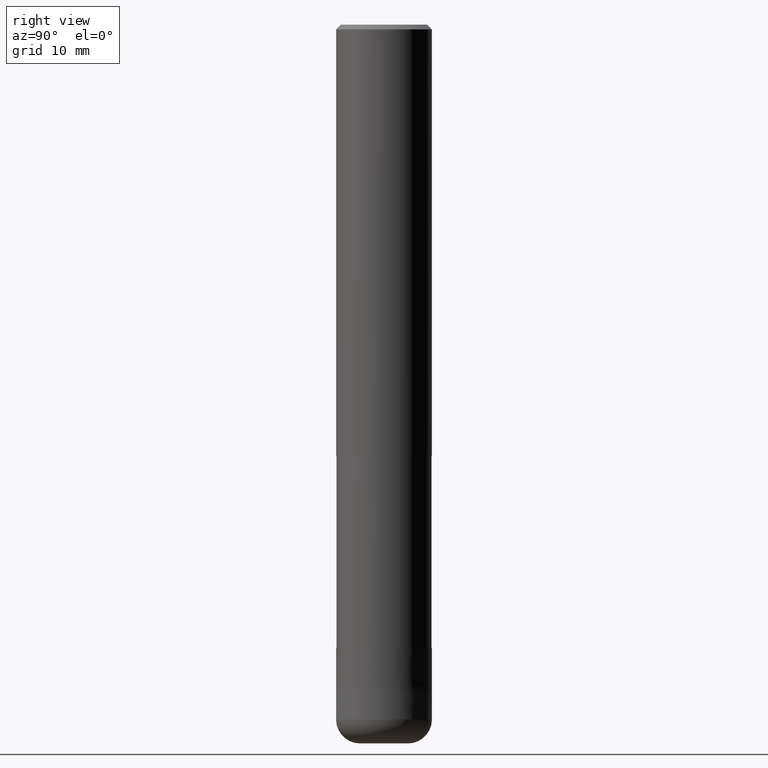
[diagram: clean part render]
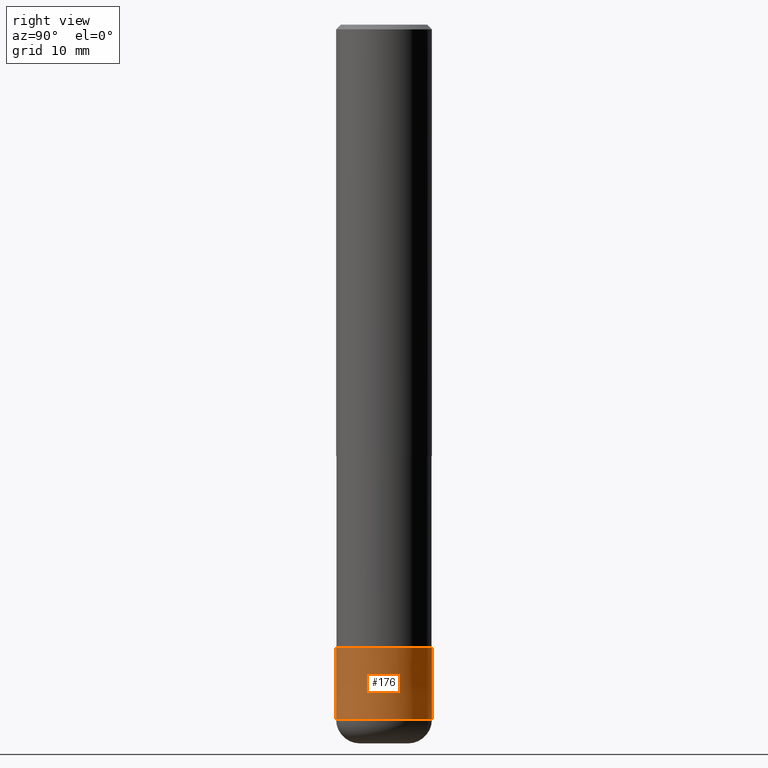
[diagram: same view with one face highlighted and labeled with its STEP entity id]
A machine part, right view. The second image highlights one B-rep face of the part: STEP entity #176.
In plain terms, the highlighted conical surface has half-angle 0.001 deg.
Its self-contained STEP definition (entity closure, byte-faithful):
#94=EDGE_CURVE('',#202,#114,#232,.T.);
#114=VERTEX_POINT('',#256);
#132=EDGE_CURVE('',#202,#206,#275,.T.);
#144=VERTEX_POINT('',#288);
#146=EDGE_CURVE('',#144,#206,#290,.T.);
#174=EDGE_CURVE('',#114,#144,#322,.T.);
#176=ADVANCED_FACE('',(#324),#325,.T.);
#202=VERTEX_POINT('',#355);
#206=VERTEX_POINT('',#359);
#232=LINE('',#378,#379);
#256=CARTESIAN_POINT('',(0.0,4.0,-58.0));
#275=CIRCLE('',#430,3.9999);
#288=CARTESIAN_POINT('',(4.89842541528951E-016,-4.0,-58.0));
#290=LINE('',#450,#451);
#322=CIRCLE('',#487,4.0);
#324=FACE_OUTER_BOUND('',#489,.T.);
#325=CONICAL_SURFACE('',#490,3.99995,1.66666666651586E-005);
#355=CARTESIAN_POINT('',(0.0,3.9999,-52.0));
#359=CARTESIAN_POINT('',(4.89830295465413E-016,-3.9999,-52.0));
#378=CARTESIAN_POINT('',(-4.89836418497182E-016,3.99995,-55.0));
#379=VECTOR('',#548,1.0);
#430=AXIS2_PLACEMENT_3D('',#602,#603,#604);
#450=CARTESIAN_POINT('',(4.89836418497182E-016,-3.99995,-55.0));
#451=VECTOR('',#620,1.0);
#487=AXIS2_PLACEMENT_3D('',#659,#660,#661);
#489=EDGE_LOOP('',(#663,#664,#665,#666));
#490=AXIS2_PLACEMENT_3D('',#667,#668,#669);
#548=DIRECTION('',(-2.04101058942479E-021,1.6666666664387E-005,-0.999999999861111));
#602=CARTESIAN_POINT('',(0.0,0.0,-52.0));
#603=DIRECTION('',(0.0,0.0,-1.0));
#604=DIRECTION('',(0.0,1.0,0.0));
#620=DIRECTION('',(-2.04101058942479E-021,1.6666666664387E-005,0.999999999861111));
#659=CARTESIAN_POINT('',(0.0,0.0,-58.0));
#660=DIRECTION('',(0.0,0.0,-1.0));
#661=DIRECTION('',(0.0,1.0,0.0));
#663=ORIENTED_EDGE('',*,*,#94,.F.);
#664=ORIENTED_EDGE('',*,*,#132,.T.);
#665=ORIENTED_EDGE('',*,*,#146,.F.);
#666=ORIENTED_EDGE('',*,*,#174,.F.);
#667=CARTESIAN_POINT('',(0.0,0.0,-55.0));
#668=DIRECTION('',(0.0,-0.0,-1.0));
#669=DIRECTION('',(0.0,1.0,0.0));